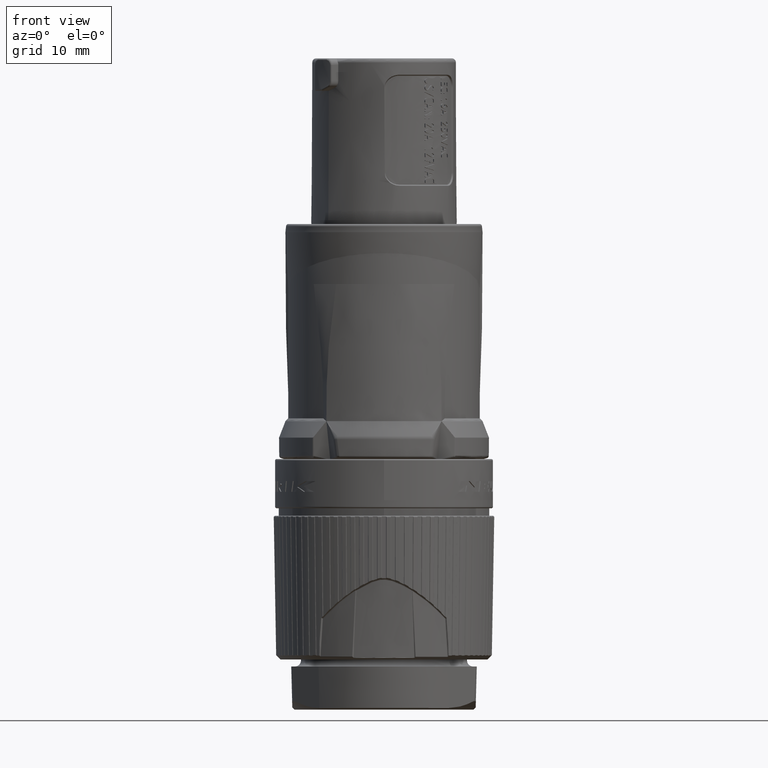
[diagram: clean part render]
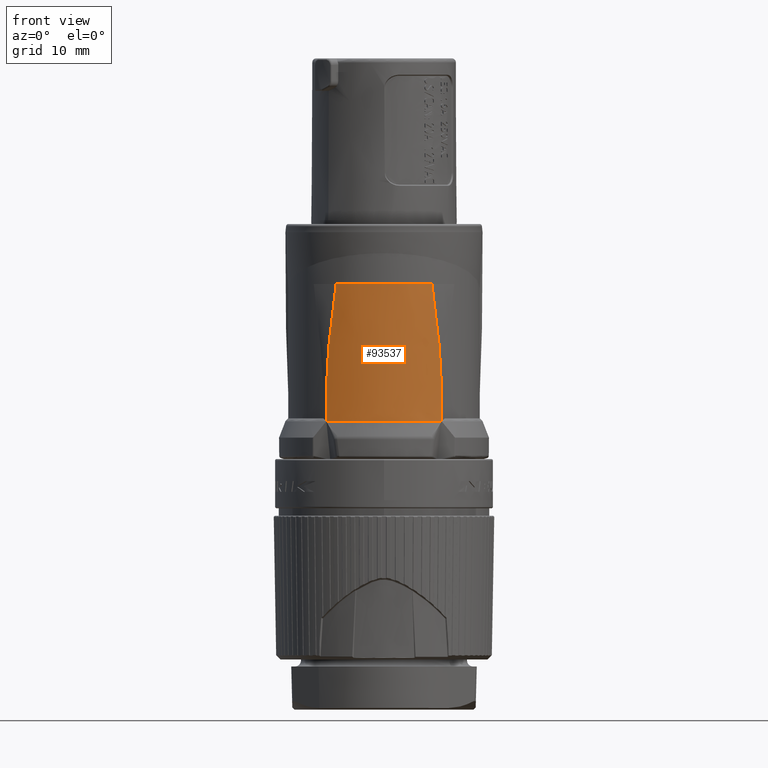
[diagram: same view with one face highlighted and labeled with its STEP entity id]
A machine part, front view. The second image highlights one B-rep face of the part: STEP entity #93537.
In plain terms, the highlighted face is a freeform B-spline surface patch.
Its self-contained STEP definition (entity closure, byte-faithful):
#6622=CARTESIAN_POINT('',(5.825000000005E0,-1.008919595409E1,3.6E1));
#6623=CARTESIAN_POINT('',(5.531992187399E0,-1.025836409357E1,3.599806092223E1));
#6624=CARTESIAN_POINT('',(4.931103749190E0,-1.057125809992E1,3.599546692006E1));
#6625=CARTESIAN_POINT('',(3.990820555946E0,-1.096086090455E1,3.599709636542E1));
#6626=CARTESIAN_POINT('',(3.344853758716E0,-1.116463260274E1,3.599852698447E1));
#6627=CARTESIAN_POINT('',(3.018163111443E0,-1.125225999822E1,3.599960645992E1));
#6629=CARTESIAN_POINT('',(3.018163111443E0,-1.125225999822E1,3.599960645992E1));
#6630=CARTESIAN_POINT('',(2.690792262974E0,-1.134006984233E1,3.599814324270E1));
#6631=CARTESIAN_POINT('',(2.028187632773E0,-1.148717779142E1,3.599620676419E1));
#6632=CARTESIAN_POINT('',(1.016588729814E0,-1.162046614716E1,3.599702523650E1));
#6633=CARTESIAN_POINT('',(3.387458320568E-1,-1.165000619014E1,
3.599854531913E1));
#6634=CARTESIAN_POINT('',(-3.783470737590E-6,-1.165000616936E1,
3.599967464978E1));
#6636=CARTESIAN_POINT('',(-3.783470737590E-6,-1.165000616936E1,
3.599967464978E1));
#6637=CARTESIAN_POINT('',(-3.390818486375E-1,-1.165000614855E1,
3.599815715909E1));
#6638=CARTESIAN_POINT('',(-1.017344954656E0,-1.162039553125E1,
3.599612186877E1));
#6639=CARTESIAN_POINT('',(-2.028305792962E0,-1.148713883101E1,
3.599730566472E1));
#6640=CARTESIAN_POINT('',(-2.690850105924E0,-1.134005994176E1,
3.599844355670E1));
#6641=CARTESIAN_POINT('',(-3.018173112740E0,-1.125226286335E1,
3.599930620759E1));
#6643=CARTESIAN_POINT('',(-3.018173112740E0,-1.125226286335E1,
3.599930620759E1));
#6644=CARTESIAN_POINT('',(-3.999122432083E0,-1.098915075871E1,
3.599930620759E1));
#6645=CARTESIAN_POINT('',(-4.945414061942E0,-1.059702209110E1,3.6E1));
#6646=CARTESIAN_POINT('',(-5.824999999997E0,-1.008919595409E1,3.6E1));
#6648=CARTESIAN_POINT('',(-5.824999999997E0,-1.008919595409E1,3.6E1));
#32920=CARTESIAN_POINT('',(6.727752091302E0,-9.777422999201E0,
2.831012103437E1));
#32921=CARTESIAN_POINT('',(6.916193155116E0,-9.719781779908E0,
2.587963597128E1));
#32922=CARTESIAN_POINT('',(7.036343606947E0,-9.696121799087E0,
2.287803920444E1));
#32923=CARTESIAN_POINT('',(7.018632318747E0,-9.730728478895E0,
1.986700106961E1));
#32924=CARTESIAN_POINT('',(7.010409170798E0,-9.739310194884E0,
1.930000004762E1));
#32926=CARTESIAN_POINT('',(5.825000000005E0,-1.008919595409E1,3.6E1));
#32927=CARTESIAN_POINT('',(6.227557283063E0,-9.942303218743E0,
3.344366512639E1));
#32928=CARTESIAN_POINT('',(6.528474646825E0,-9.838378900449E0,
3.088037213785E1));
#32929=CARTESIAN_POINT('',(6.727752091302E0,-9.777422999201E0,
2.831012103437E1));
#32931=CARTESIAN_POINT('',(-6.727752091302E0,-9.777422999201E0,
2.831012103437E1));
#32932=CARTESIAN_POINT('',(-6.916193155116E0,-9.719781779908E0,
2.587963597128E1));
#32933=CARTESIAN_POINT('',(-7.036343960720E0,-9.696121650596E0,
2.287803876490E1));
#32934=CARTESIAN_POINT('',(-7.018632154925E0,-9.730728548331E0,
1.986700119856E1));
#32935=CARTESIAN_POINT('',(-7.010409006011E0,-9.739310265001E0,
1.930000014612E1));
#32937=CARTESIAN_POINT('',(-5.824999999997E0,-1.008919595409E1,3.6E1));
#32938=CARTESIAN_POINT('',(-6.227557283055E0,-9.942303218747E0,
3.344366512639E1));
#32939=CARTESIAN_POINT('',(-6.528474646825E0,-9.838378900449E0,
3.088037213785E1));
#32940=CARTESIAN_POINT('',(-6.727752091302E0,-9.777422999201E0,
2.831012103437E1));
#32958=CARTESIAN_POINT('',(0.E0,0.E0,1.930043746768E1));
#32959=DIRECTION('',(0.E0,0.E0,-1.E0));
#32960=DIRECTION('',(5.842012188067E-1,-8.116088564973E-1,0.E0));
#32961=AXIS2_PLACEMENT_3D('',#32958,#32959,#32960);
#39864=VERTEX_POINT('',#6622);
#39865=VERTEX_POINT('',#6627);
#39866=VERTEX_POINT('',#6648);
#39868=VERTEX_POINT('',#6634);
#39869=VERTEX_POINT('',#6641);
#39871=VERTEX_POINT('',#32940);
#39872=VERTEX_POINT('',#32929);
#39873=CARTESIAN_POINT('',(7.010312401239E0,-9.739164261383E0,
1.930043746768E1));
#39874=CARTESIAN_POINT('',(-7.010311956029E0,-9.739164581848E0,
1.930043746768E1));
#39875=VERTEX_POINT('',#39873);
#39876=VERTEX_POINT('',#39874);
#93487=CARTESIAN_POINT('',(-5.824927695080E0,-1.008922233814E1,
3.600045914649E1));
#93488=CARTESIAN_POINT('',(-6.608199637340E0,-9.803405848326E0,
3.102664727014E1));
#93489=CARTESIAN_POINT('',(-7.051594051991E0,-9.666378424432E0,
2.546312978215E1));
#93490=CARTESIAN_POINT('',(-7.018623149001E0,-9.730735100190E0,
1.986700104599E1));
#93491=CARTESIAN_POINT('',(-7.0104E0,-9.739316816923E0,1.929999999082E1));
#93492=CARTESIAN_POINT('',(-4.944487078076E0,-1.059753550044E1,
3.600045914649E1));
#93493=CARTESIAN_POINT('',(-5.642998311375E0,-1.046318850023E1,
3.102664727014E1));
#93494=CARTESIAN_POINT('',(-6.036021399590E0,-1.040671568370E1,
2.546312978215E1));
#93495=CARTESIAN_POINT('',(-6.005193171281E0,-1.046165814552E1,
1.986700104599E1));
#93496=CARTESIAN_POINT('',(-5.997683093312E0,-1.046827458019E1,
1.929999999082E1));
#93497=CARTESIAN_POINT('',(-3.049850054966E0,-1.138230070731E1,
3.600045914649E1));
#93498=CARTESIAN_POINT('',(-3.510162776967E0,-1.148516776062E1,
3.102664727014E1));
#93499=CARTESIAN_POINT('',(-3.770247754966E0,-1.156554997666E1,
2.546312978215E1));
#93500=CARTESIAN_POINT('',(-3.748285702483E0,-1.160405579343E1,
1.986700104599E1));
#93501=CARTESIAN_POINT('',(-3.743187947281E0,-1.160757026464E1,
1.929999999082E1));
#93502=CARTESIAN_POINT('',(0.E0,-1.178382352969E1,3.600045914649E1));
#93503=CARTESIAN_POINT('',(0.E0,-1.201530830614E1,3.102664727014E1));
#93504=CARTESIAN_POINT('',(0.E0,-1.216428068916E1,2.546312978215E1));
#93505=CARTESIAN_POINT('',(0.E0,-1.219440543234E1,1.986700104599E1));
#93506=CARTESIAN_POINT('',(0.E0,-1.219621488146E1,1.929999999082E1));
#93507=CARTESIAN_POINT('',(3.049850054967E0,-1.138230070731E1,
3.600045914649E1));
#93508=CARTESIAN_POINT('',(3.510162776968E0,-1.148516776062E1,
3.102664727014E1));
#93509=CARTESIAN_POINT('',(3.770247754968E0,-1.156554997666E1,
2.546312978215E1));
#93510=CARTESIAN_POINT('',(3.748285702485E0,-1.160405579343E1,
1.986700104599E1));
#93511=CARTESIAN_POINT('',(3.743187947282E0,-1.160757026464E1,
1.929999999082E1));
#93512=CARTESIAN_POINT('',(4.944487078078E0,-1.059753550044E1,
3.600045914649E1));
#93513=CARTESIAN_POINT('',(5.642998311378E0,-1.046318850023E1,
3.102664727014E1));
#93514=CARTESIAN_POINT('',(6.036021399593E0,-1.040671568370E1,
2.546312978215E1));
#93515=CARTESIAN_POINT('',(6.005193171284E0,-1.046165814552E1,
1.986700104599E1));
#93516=CARTESIAN_POINT('',(5.997683093314E0,-1.046827458019E1,
1.929999999082E1));
#93517=CARTESIAN_POINT('',(5.824927695083E0,-1.008922233814E1,
3.600045914649E1));
#93518=CARTESIAN_POINT('',(6.608199637342E0,-9.803405848325E0,
3.102664727014E1));
#93519=CARTESIAN_POINT('',(7.051594051994E0,-9.666378424430E0,
2.546312978215E1));
#93520=CARTESIAN_POINT('',(7.018623149004E0,-9.730735100188E0,
1.986700104599E1));
#93521=CARTESIAN_POINT('',(7.010400000003E0,-9.739316816920E0,
1.929999999082E1));
#93522=B_SPLINE_SURFACE_WITH_KNOTS('',3,3,((#93487,#93488,#93489,#93490,#93491),
(#93492,#93493,#93494,#93495,#93496),(#93497,#93498,#93499,#93500,#93501),(
#93502,#93503,#93504,#93505,#93506),(#93507,#93508,#93509,#93510,#93511),
(#93512,#93513,#93514,#93515,#93516),(#93517,#93518,#93519,#93520,#93521)),
.UNSPECIFIED.,.F.,.F.,.F.,(4,1,1,1,4),(4,1,4),(0.E0,2.5E-1,5.E-1,7.5E-1,1.E0),(
-4.642965610280E-4,1.508834176343E1,1.678838907808E1),.UNSPECIFIED.);
#93524=ORIENTED_EDGE('',*,*,#93523,.F.);
#93526=ORIENTED_EDGE('',*,*,#93525,.F.);
#93527=ORIENTED_EDGE('',*,*,#52879,.F.);
#93528=ORIENTED_EDGE('',*,*,#52877,.F.);
#93529=ORIENTED_EDGE('',*,*,#52875,.F.);
#93530=ORIENTED_EDGE('',*,*,#52873,.F.);
#93531=ORIENTED_EDGE('',*,*,#93480,.T.);
#93532=ORIENTED_EDGE('',*,*,#93478,.T.);
#93534=ORIENTED_EDGE('',*,*,#93533,.T.);
#93535=EDGE_LOOP('',(#93524,#93526,#93527,#93528,#93529,#93530,#93531,#93532,
#93534));
#93536=FACE_OUTER_BOUND('',#93535,.F.);
#93537=ADVANCED_FACE('',(#93536),#93522,.F.);
#6628=B_SPLINE_CURVE_WITH_KNOTS('',3,(#6622,#6623,#6624,#6625,#6626,#6627),
.UNSPECIFIED.,.F.,.F.,(4,1,1,4),(0.E0,3.333333333333E-1,6.666666666667E-1,1.E0),
.UNSPECIFIED.);
#6635=B_SPLINE_CURVE_WITH_KNOTS('',3,(#6629,#6630,#6631,#6632,#6633,#6634),
.UNSPECIFIED.,.F.,.F.,(4,1,1,4),(0.E0,3.333333333333E-1,6.666666666667E-1,1.E0),
.UNSPECIFIED.);
#6642=B_SPLINE_CURVE_WITH_KNOTS('',3,(#6636,#6637,#6638,#6639,#6640,#6641),
.UNSPECIFIED.,.F.,.F.,(4,1,1,4),(0.E0,3.333333333333E-1,6.666666666667E-1,1.E0),
.UNSPECIFIED.);
#6647=B_SPLINE_CURVE_WITH_KNOTS('',3,(#6643,#6644,#6645,#6646),.UNSPECIFIED.,
.F.,.F.,(4,4),(0.E0,1.E0),.UNSPECIFIED.);
#32925=B_SPLINE_CURVE_WITH_KNOTS('',3,(#32920,#32921,#32922,#32923,#32924),
.UNSPECIFIED.,.F.,.F.,(4,1,4),(0.E0,8.118035585938E-1,1.E0),.UNSPECIFIED.);
#32930=B_SPLINE_CURVE_WITH_KNOTS('',3,(#32926,#32927,#32928,#32929),
.UNSPECIFIED.,.F.,.F.,(4,4),(0.E0,1.E0),.UNSPECIFIED.);
#32936=B_SPLINE_CURVE_WITH_KNOTS('',3,(#32931,#32932,#32933,#32934,#32935),
.UNSPECIFIED.,.F.,.F.,(4,1,4),(0.E0,8.118035503987E-1,1.E0),.UNSPECIFIED.);
#32941=B_SPLINE_CURVE_WITH_KNOTS('',3,(#32937,#32938,#32939,#32940),
.UNSPECIFIED.,.F.,.F.,(4,4),(0.E0,1.E0),.UNSPECIFIED.);
#32962=CIRCLE('',#32961,1.199982501844E1);
#52873=EDGE_CURVE('',#39864,#39865,#6628,.T.);
#52875=EDGE_CURVE('',#39865,#39868,#6635,.T.);
#52877=EDGE_CURVE('',#39868,#39869,#6642,.T.);
#52879=EDGE_CURVE('',#39869,#39866,#6647,.T.);
#93478=EDGE_CURVE('',#39872,#39875,#32925,.T.);
#93480=EDGE_CURVE('',#39864,#39872,#32930,.T.);
#93523=EDGE_CURVE('',#39871,#39876,#32936,.T.);
#93525=EDGE_CURVE('',#39866,#39871,#32941,.T.);
#93533=EDGE_CURVE('',#39875,#39876,#32962,.T.);